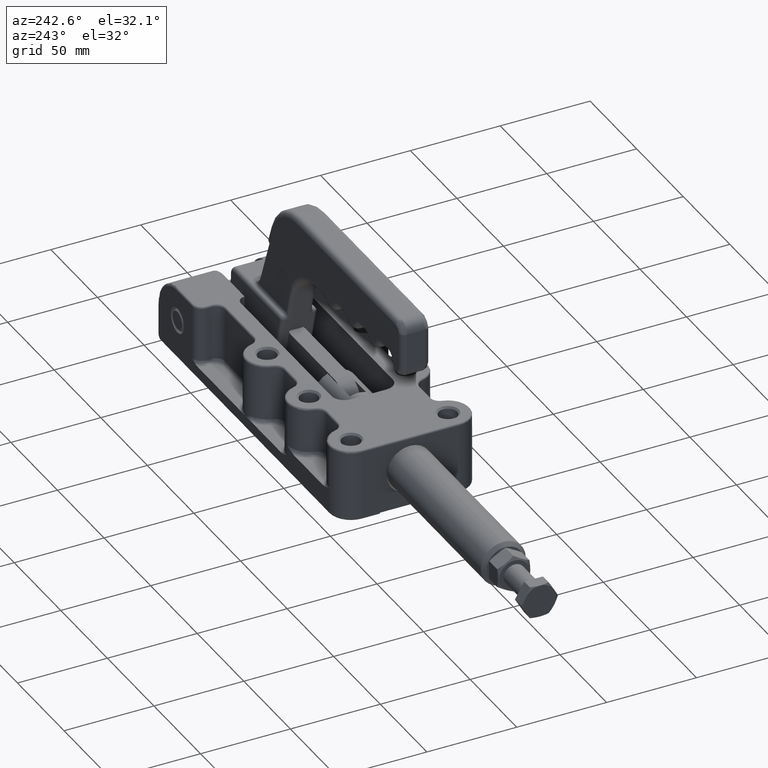
[diagram: clean part render]
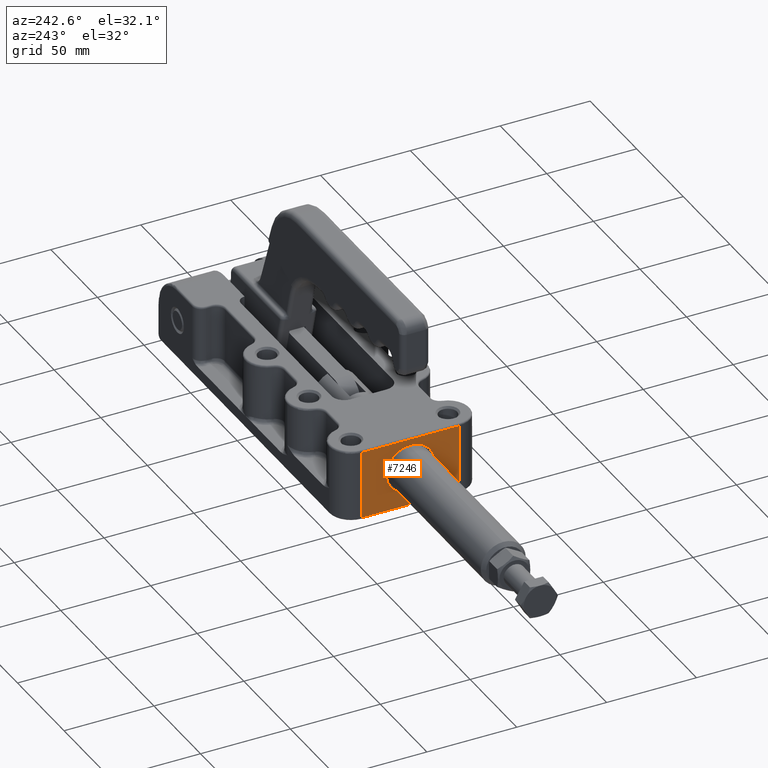
[diagram: same view with one face highlighted and labeled with its STEP entity id]
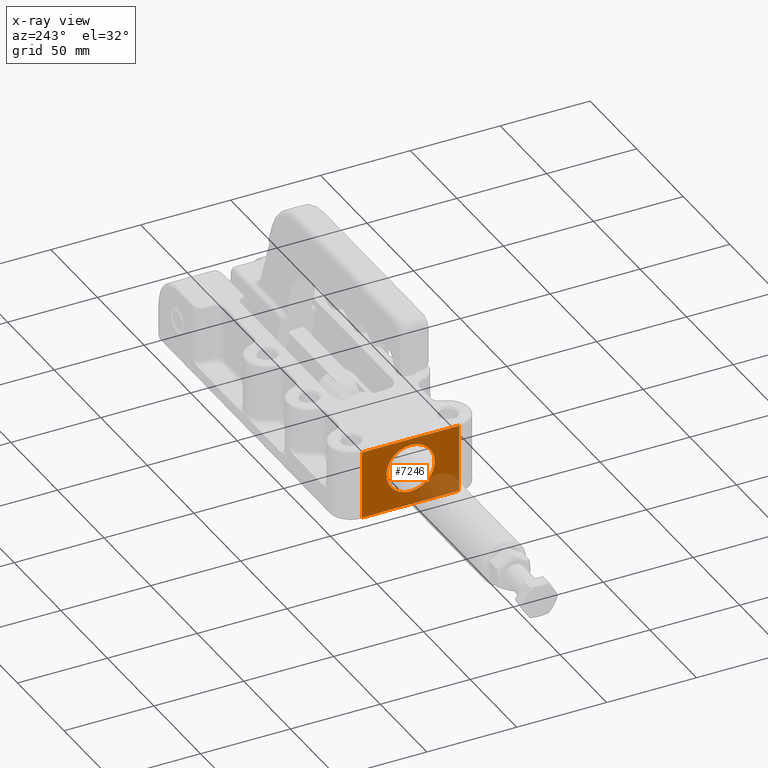
[diagram: x-ray of the same camera — body ghosted, the highlighted face saturated]
A machine part, auxiliary view. The second image highlights one B-rep face of the part: STEP entity #7246.
The next image is the same camera in x-ray: the body ghosted, the highlighted face saturated — about 17% of this face is hidden behind the body in this view.
In plain terms, the highlighted planar face has unit normal (-1, 0, 0).
Its self-contained STEP definition (entity closure, byte-faithful):
#261=CARTESIAN_POINT('',(-1.006319827164365,55.933960241155930,8.499999999999879));
#262=VERTEX_POINT('',#261);
#276=CARTESIAN_POINT('',(-1.006319827164365,55.933960241155930,35.499999999999879));
#277=VERTEX_POINT('',#276);
#284=CARTESIAN_POINT('',(-1.006319827164365,55.933960241155930,21.999999999999879));
#285=DIRECTION('',(-1.0,0.0,0.0));
#286=DIRECTION('',(0.0,0.0,-1.0));
#287=AXIS2_PLACEMENT_3D('',#284,#285,#286);
#288=CIRCLE('',#287,13.500000000000000);
#289=EDGE_CURVE('',#277,#262,#288,.T.);
#2353=CARTESIAN_POINT('',(-1.006319827164368,82.933960241156157,1.0));
#2354=VERTEX_POINT('',#2353);
#2362=CARTESIAN_POINT('',(-1.006319827164368,82.933960241156157,39.0));
#2363=VERTEX_POINT('',#2362);
#2364=CARTESIAN_POINT('',(-1.006319827164368,82.933960241156157,1.0));
#2365=DIRECTION('',(0.0,0.0,1.0));
#2366=VECTOR('',#2365,38.0);
#2367=LINE('',#2364,#2366);
#2368=EDGE_CURVE('',#2354,#2363,#2367,.T.);
#5053=CARTESIAN_POINT('',(-1.006319827164367,72.933960241156001,1.0));
#5054=VERTEX_POINT('',#5053);
#5062=CARTESIAN_POINT('',(-1.006319827164367,72.933960241156001,1.0));
#5063=DIRECTION('',(0.0,1.0,0.0));
#5064=VECTOR('',#5063,10.000000000000156);
#5065=LINE('',#5062,#5064);
#5066=EDGE_CURVE('',#5054,#2354,#5065,.T.);
#5145=CARTESIAN_POINT('',(-1.006319827164361,28.933960241156036,1.0));
#5146=VERTEX_POINT('',#5145);
#5181=CARTESIAN_POINT('',(-1.006319827164363,38.933960241156129,1.0));
#5182=VERTEX_POINT('',#5181);
#5183=CARTESIAN_POINT('',(-1.006319827164361,28.933960241156036,1.0));
#5184=DIRECTION('',(0.0,1.0,0.0));
#5185=VECTOR('',#5184,10.000000000000092);
#5186=LINE('',#5183,#5185);
#5187=EDGE_CURVE('',#5146,#5182,#5186,.T.);
#5562=CARTESIAN_POINT('',(-1.006319827164361,28.933960241156036,39.0));
#5563=VERTEX_POINT('',#5562);
#5627=CARTESIAN_POINT('',(-1.006319827164368,82.933960241156157,39.0));
#5628=DIRECTION('',(0.0,-1.0,0.0));
#5629=VECTOR('',#5628,54.000000000000121);
#5630=LINE('',#5627,#5629);
#5631=EDGE_CURVE('',#2363,#5563,#5630,.T.);
#6727=CARTESIAN_POINT('',(-1.006319827164361,28.933960241156036,1.0));
#6728=DIRECTION('',(0.0,0.0,1.0));
#6729=VECTOR('',#6728,38.0);
#6730=LINE('',#6727,#6729);
#6731=EDGE_CURVE('',#5146,#5563,#6730,.T.);
#7212=CARTESIAN_POINT('',(-1.006319827164365,55.933960241155930,21.999999999999879));
#7213=DIRECTION('',(-1.0,0.0,0.0));
#7214=DIRECTION('',(0.0,0.0,-1.0));
#7215=AXIS2_PLACEMENT_3D('',#7212,#7213,#7214);
#7216=CIRCLE('',#7215,13.500000000000000);
#7217=EDGE_CURVE('',#262,#277,#7216,.T.);
#7224=CARTESIAN_POINT('',(-1.006319827164361,28.933960241156036,0.0));
#7225=DIRECTION('',(-1.0,0.0,0.0));
#7226=DIRECTION('',(0.0,0.0,1.0));
#7227=AXIS2_PLACEMENT_3D('',#7224,#7225,#7226);
#7228=PLANE('',#7227);
#7229=ORIENTED_EDGE('',*,*,#5066,.F.);
#7230=CARTESIAN_POINT('',(-1.006319827164367,72.933960241156001,1.0));
#7231=DIRECTION('',(0.0,-1.0,0.0));
#7232=VECTOR('',#7231,33.999999999999872);
#7233=LINE('',#7230,#7232);
#7234=EDGE_CURVE('',#5054,#5182,#7233,.T.);
#7235=ORIENTED_EDGE('',*,*,#7234,.T.);
#7236=ORIENTED_EDGE('',*,*,#5187,.F.);
#7237=ORIENTED_EDGE('',*,*,#6731,.T.);
#7238=ORIENTED_EDGE('',*,*,#5631,.F.);
#7239=ORIENTED_EDGE('',*,*,#2368,.F.);
#7240=EDGE_LOOP('',(#7229,#7235,#7236,#7237,#7238,#7239));
#7241=FACE_OUTER_BOUND('',#7240,.T.);
#7242=ORIENTED_EDGE('',*,*,#289,.F.);
#7243=ORIENTED_EDGE('',*,*,#7217,.F.);
#7244=EDGE_LOOP('',(#7242,#7243));
#7245=FACE_BOUND('',#7244,.T.);
#7246=ADVANCED_FACE('',(#7241,#7245),#7228,.T.);